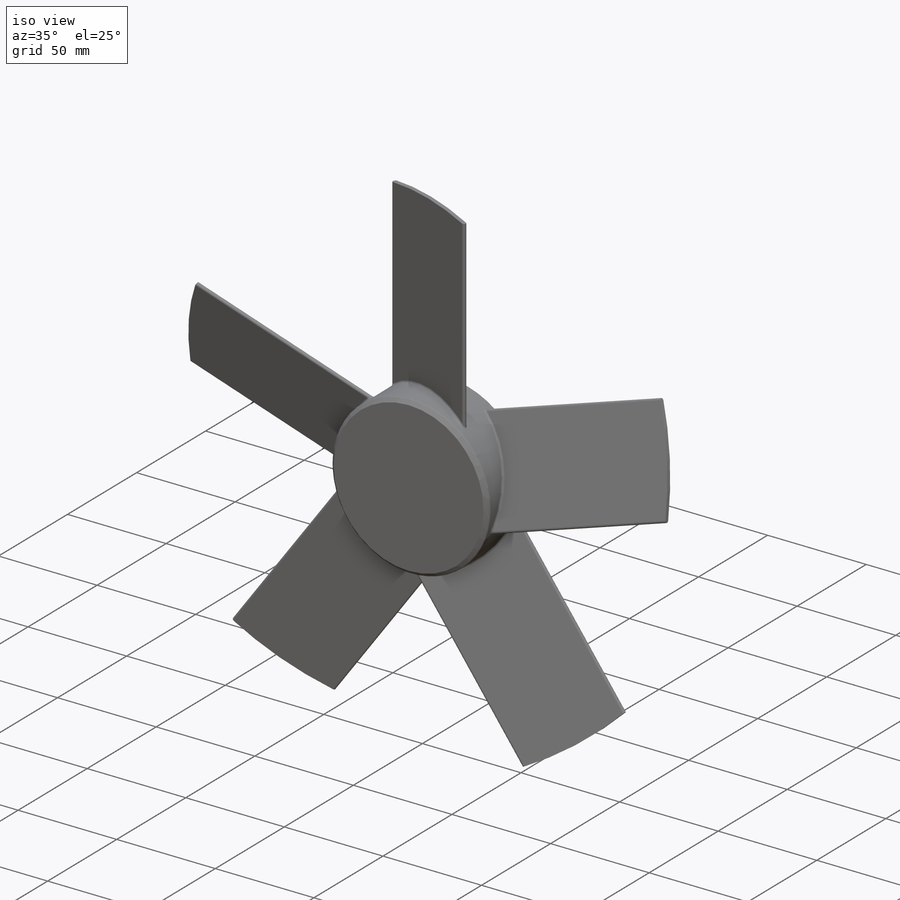
[diagram: iso view]
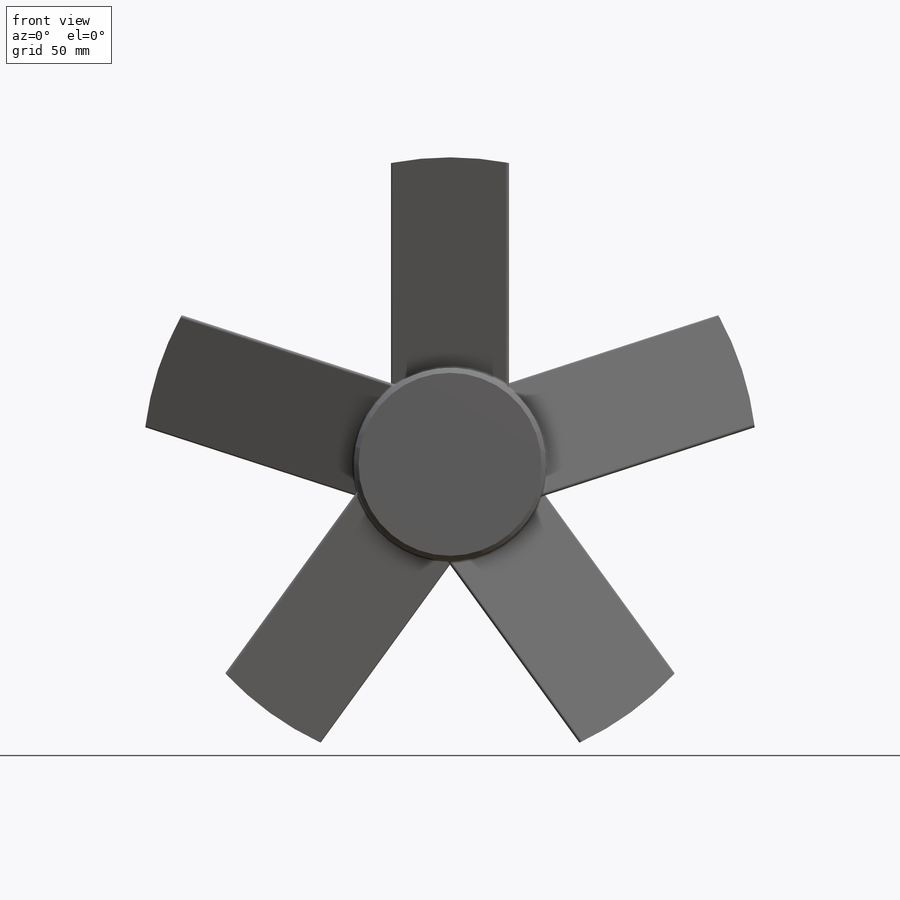
[diagram: front view]
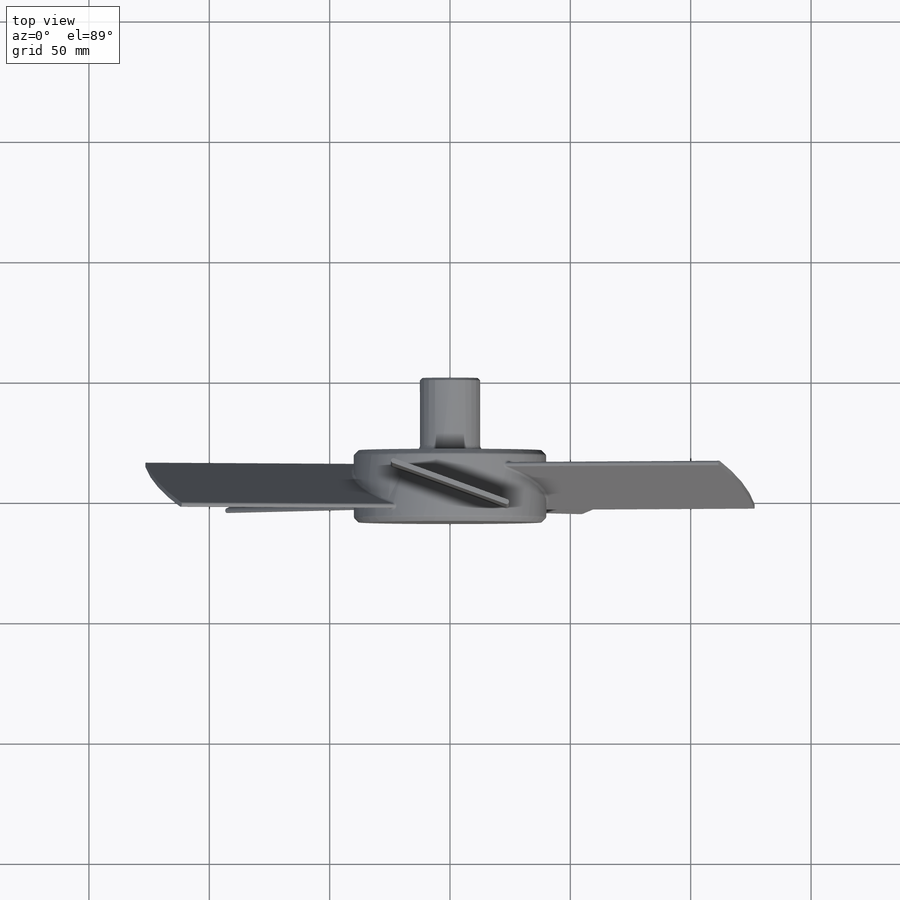
[diagram: top view]
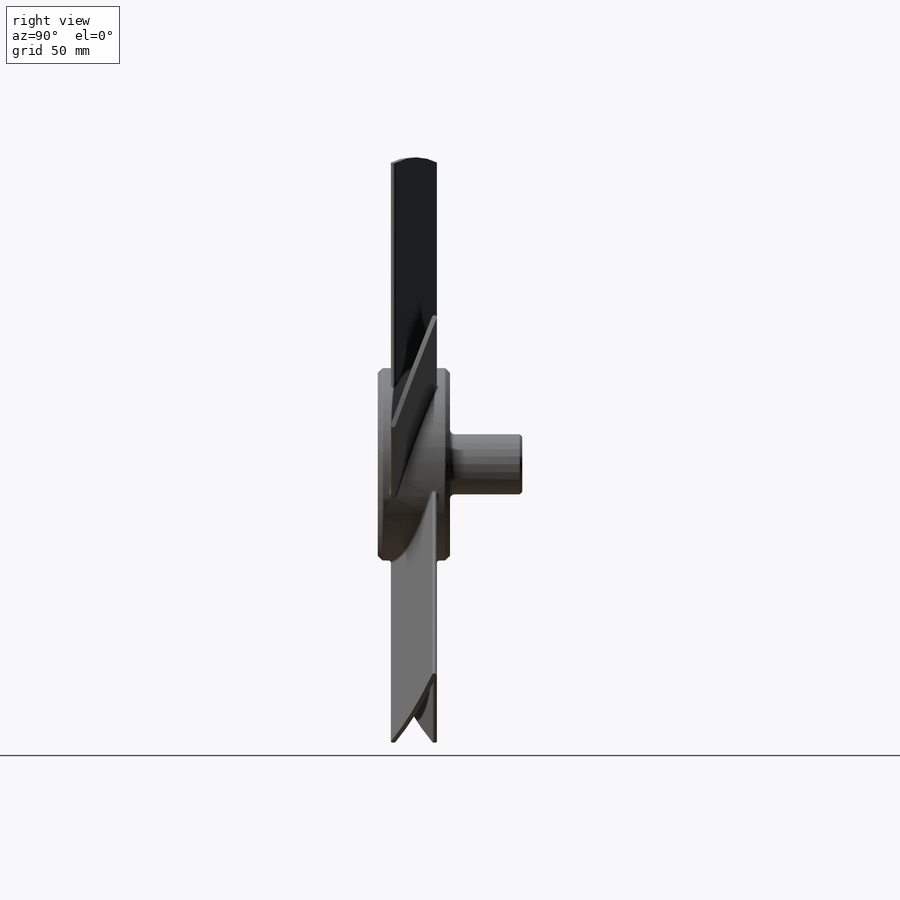
[diagram: right view]
SOLIDWORKS PART (.sldprt)
format: sldprt  version: not decoded by parser v0  size: 482,304 bytes
history: native  units: mm
features: sketch x4, extrude x3, chamfer x2, fillet x2, material x1, pattern_circular x1, cut_extrude x1 (+11 scaffold rows collapsed)
feature tree (25):
  scaffold x11  (default folders/planes/origin — collapsed)
  material  "Material <not specified>"
  sketch  "Sketch1"  dims[D1=25.0mm]
  extrude  "Boss-Extrude1"  Depth=30mm
  sketch  "Sketch3"  dims[D1=80.0mm]
  extrude  "Boss-Extrude3"  Depth=30mm
  sketch  "Sketch2"  dims[c1.D1=2.0mm c1.D2=50.0mm c1.D3=~17.533267mm c2.D3=70.0deg c2.D4=15.0mm]
  extrude  "Boss-Extrude2"  Depth=135mm
  pattern_circular  "CirPattern1"  Count=5 Angle=360deg
  sketch  "Sketch4"  dims[D1=255.0mm]
  cut_extrude  "Cut-Extrude1"  [1 undecoded]
  chamfer  "Chamfer1"  Distance=2mm Angle=45deg
  fillet  "Fillet1"  Radius=2mm
  chamfer  "Chamfer2"  Distance=1mm Angle=45deg
  fillet  "Fillet2"  Radius=1mm
decode coverage: 12 of 13 modeling features carry decoded parameters
note: ~ marks probable driven/reference dimensions
note: 1 parameter value undecoded
note: suppression state not decoded; provenance and decode notes live in map.json
